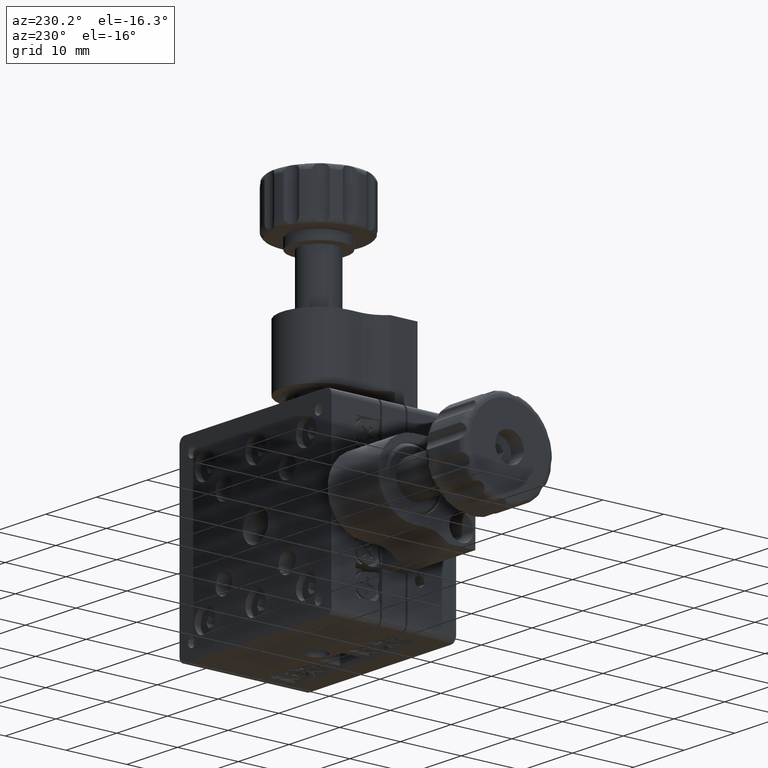
[diagram: clean part render]
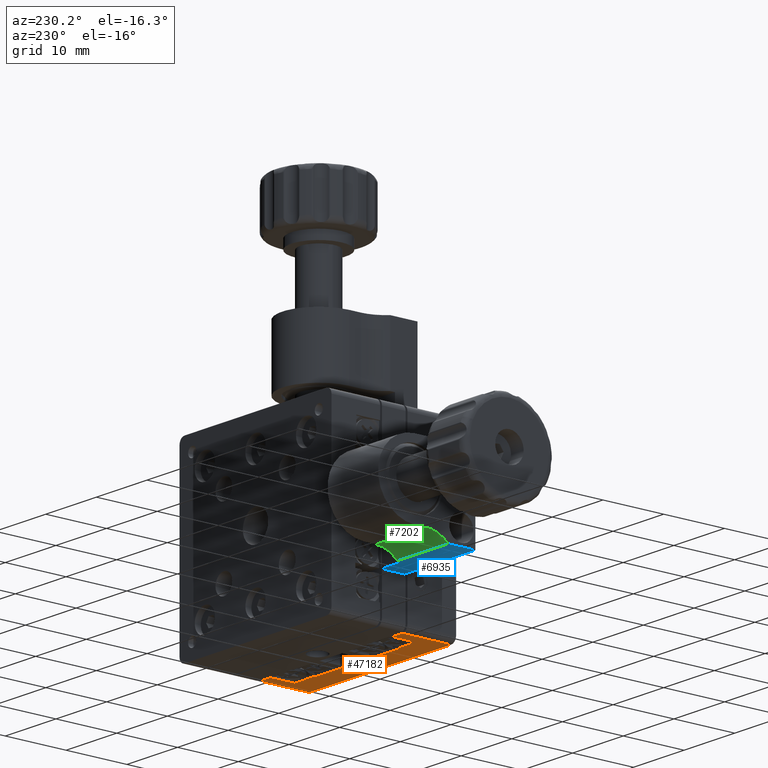
[diagram: same view with three faces highlighted in distinct colors, each labeled with its STEP entity id]
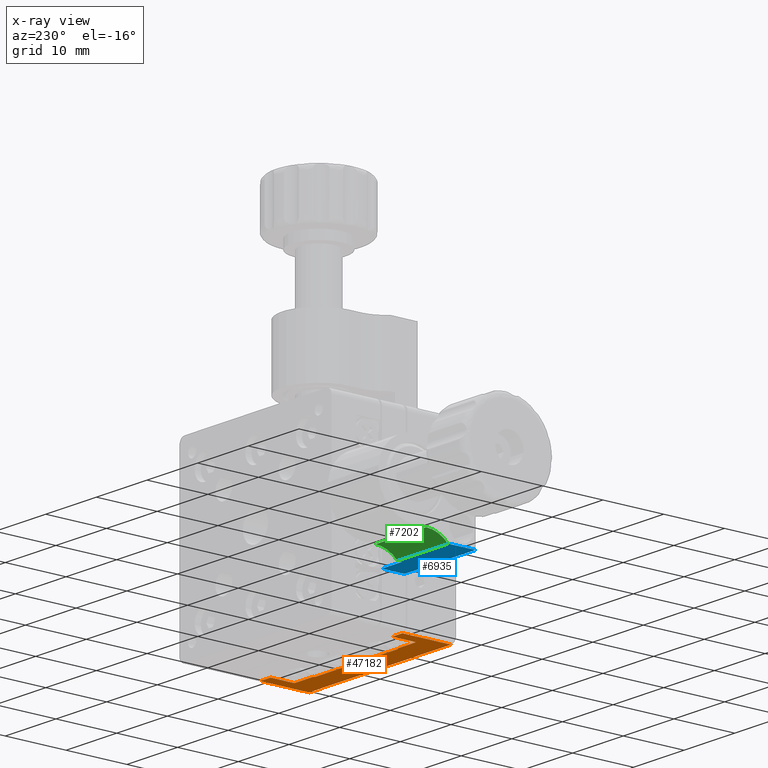
[diagram: x-ray of the same camera — body ghosted, the three highlighted faces saturated]
A machine part, auxiliary view with three faces highlighted in distinct colors.
The next image is the same camera in x-ray (body ghosted, the three faces saturated) — at least one of them is partly hidden behind the body in this view.
Their STEP definitions:

[orange] entity #47182 — the highlighted planar face has unit normal (-0, -0, 1).
#286 = VERTEX_POINT ( 'NONE', #46680 ) ;
#796 = EDGE_CURVE ( 'NONE', #7536, #27039, #18729, .T. ) ;
#1117 = CARTESIAN_POINT ( 'NONE',  ( -14.99999999999999300, 4.100000000000044900, -15.00000000000001400 ) ) ;
#1834 = LINE ( 'NONE', #44731, #26062 ) ;
#2376 = CARTESIAN_POINT ( 'NONE',  ( -11.99999999999998600, 4.100000000000030700, -15.00000000000001400 ) ) ;
#3353 = EDGE_CURVE ( 'NONE', #286, #5632, #28351, .T. ) ;
#4236 = CARTESIAN_POINT ( 'NONE',  ( 14.00000000000003400, 4.099999999999956100, -15.00000000000001400 ) ) ;
#5072 = VERTEX_POINT ( 'NONE', #44648 ) ;
#5483 = EDGE_CURVE ( 'NONE', #27039, #286, #20821, .T. ) ;
#5632 = VERTEX_POINT ( 'NONE', #25034 ) ;
#5971 = CARTESIAN_POINT ( 'NONE',  ( 14.00000000000002300, 7.999999999999954700, -15.00000000000001400 ) ) ;
#6030 = DIRECTION ( 'NONE',  ( 1.000000000000000000, -2.128939385892535300E-015, 7.133644514010314600E-030 ) ) ;
#6434 = VECTOR ( 'NONE', #33418, 1000.000000000000000 ) ;
#6611 = VERTEX_POINT ( 'NONE', #10881 ) ;
#7406 = LINE ( 'NONE', #45781, #8068 ) ;
#7536 = VERTEX_POINT ( 'NONE', #24211 ) ;
#7849 = ORIENTED_EDGE ( 'NONE', *, *, #29146, .T. ) ;
#8055 = LINE ( 'NONE', #38324, #20471 ) ;
#8068 = VECTOR ( 'NONE', #41772, 1000.000000000000000 ) ;
#8492 = VECTOR ( 'NONE', #24387, 1000.000000000000000 ) ;
#9209 = VERTEX_POINT ( 'NONE', #39303 ) ;
#9406 = VECTOR ( 'NONE', #6030, 1000.000000000000000 ) ;
#10232 = VECTOR ( 'NONE', #44068, 1000.000000000000000 ) ;
#10359 = DIRECTION ( 'NONE',  ( 1.000000000000000000, -3.108624468950438700E-015, 7.133644514010314600E-030 ) ) ;
#10815 = ORIENTED_EDGE ( 'NONE', *, *, #50683, .T. ) ;
#10881 = CARTESIAN_POINT ( 'NONE',  ( -8.249999999999989300, 4.100000000000018300, -15.00000000000001400 ) ) ;
#11582 = DIRECTION ( 'NONE',  ( 4.000361295780773500E-015, -1.000000000000000000, 2.667084525145951800E-029 ) ) ;
#12028 = CARTESIAN_POINT ( 'NONE',  ( 12.00000000000002500, 4.099999999999954300, -15.00000000000001400 ) ) ;
#12988 = ORIENTED_EDGE ( 'NONE', *, *, #25537, .T. ) ;
#13776 = EDGE_LOOP ( 'NONE', ( #15155, #19069, #23401, #7849, #24188, #12988, #16915, #17515, #43854, #23766, #26630, #10815 ) ) ;
#14094 = EDGE_CURVE ( 'NONE', #36016, #9209, #48630, .T. ) ;
#15155 = ORIENTED_EDGE ( 'NONE', *, *, #796, .T. ) ;
#16915 = ORIENTED_EDGE ( 'NONE', *, *, #17856, .T. ) ;
#17036 = LINE ( 'NONE', #39612, #36795 ) ;
#17141 = DIRECTION ( 'NONE',  ( -7.133644514010397300E-030, -2.667395143078001700E-029, 1.000000000000000000 ) ) ;
#17327 = EDGE_CURVE ( 'NONE', #5072, #48358, #7406, .T. ) ;
#17515 = ORIENTED_EDGE ( 'NONE', *, *, #24785, .T. ) ;
#17559 = VERTEX_POINT ( 'NONE', #35328 ) ;
#17579 = CARTESIAN_POINT ( 'NONE',  ( -14.99999999999999600, 8.000000000000046200, -15.00000000000001400 ) ) ;
#17856 = EDGE_CURVE ( 'NONE', #17559, #6611, #24796, .T. ) ;
#18124 = CARTESIAN_POINT ( 'NONE',  ( 12.00000000000002500, 4.099999999999954300, -15.00000000000001400 ) ) ;
#18729 = LINE ( 'NONE', #45387, #9406 ) ;
#19069 = ORIENTED_EDGE ( 'NONE', *, *, #5483, .T. ) ;
#19717 = CARTESIAN_POINT ( 'NONE',  ( -14.99999999999998800, 4.336808689942017700E-014, -15.00000000000001400 ) ) ;
#20030 = DIRECTION ( 'NONE',  ( 1.337249399532482700E-015, 1.000000000000000000, -2.667090451084242700E-029 ) ) ;
#20338 = VECTOR ( 'NONE', #20030, 1000.000000000000000 ) ;
#20471 = VECTOR ( 'NONE', #50161, 1000.000000000000000 ) ;
#20803 = VERTEX_POINT ( 'NONE', #34368 ) ;
#20821 = LINE ( 'NONE', #4236, #10232 ) ;
#20987 = VECTOR ( 'NONE', #21841, 1000.000000000000000 ) ;
#21841 = DIRECTION ( 'NONE',  ( -1.125835535908947600E-015, 1.000000000000000000, -2.667846532908724100E-029 ) ) ;
#22090 = CARTESIAN_POINT ( 'NONE',  ( -13.99999999999999600, 8.000000000000037300, -15.00000000000001400 ) ) ;
#22298 = VECTOR ( 'NONE', #10359, 1000.000000000000000 ) ;
#23401 = ORIENTED_EDGE ( 'NONE', *, *, #3353, .T. ) ;
#23766 = ORIENTED_EDGE ( 'NONE', *, *, #33806, .T. ) ;
#24188 = ORIENTED_EDGE ( 'NONE', *, *, #14094, .T. ) ;
#24211 = CARTESIAN_POINT ( 'NONE',  ( 12.00000000000003000, 7.999999999999954700, -15.00000000000001400 ) ) ;
#24387 = DIRECTION ( 'NONE',  ( -1.000000000000000000, 3.224272700682225600E-015, -7.136726001921334200E-030 ) ) ;
#24735 = PLANE ( 'NONE',  #25489 ) ;
#24785 = EDGE_CURVE ( 'NONE', #6611, #5072, #38425, .T. ) ;
#24796 = LINE ( 'NONE', #2376, #22298 ) ;
#25034 = CARTESIAN_POINT ( 'NONE',  ( -13.99999999999998800, 3.295974604355933500E-014, -15.00000000000001400 ) ) ;
#25489 = AXIS2_PLACEMENT_3D ( 'NONE', #1117, #17141, #25563 ) ;
#25537 = EDGE_CURVE ( 'NONE', #9209, #17559, #17036, .T. ) ;
#25562 = FACE_OUTER_BOUND ( 'NONE', #13776, .T. ) ;
#25563 = DIRECTION ( 'NONE',  ( -1.000000000000000000, 3.108624468950438700E-015, -7.133644514010314600E-030 ) ) ;
#26062 = VECTOR ( 'NONE', #32920, 1000.000000000000000 ) ;
#26630 = ORIENTED_EDGE ( 'NONE', *, *, #49321, .T. ) ;
#27039 = VERTEX_POINT ( 'NONE', #5971 ) ;
#28351 = LINE ( 'NONE', #19717, #8492 ) ;
#29146 = EDGE_CURVE ( 'NONE', #5632, #36016, #35802, .T. ) ;
#31555 = VECTOR ( 'NONE', #37298, 1000.000000000000000 ) ;
#32920 = DIRECTION ( 'NONE',  ( 1.000000000000000000, -3.339920932414012900E-015, 7.133644514010314600E-030 ) ) ;
#33407 = CARTESIAN_POINT ( 'NONE',  ( -13.99999999999999100, 4.100000000000044900, -15.00000000000001400 ) ) ;
#33418 = DIRECTION ( 'NONE',  ( 1.000000000000000000, -4.333230822772817900E-015, 7.133644514010314600E-030 ) ) ;
#33806 = EDGE_CURVE ( 'NONE', #48358, #20803, #8055, .T. ) ;
#34368 = CARTESIAN_POINT ( 'NONE',  ( 8.250000000000028400, 4.099999999999966800, -15.00000000000001400 ) ) ;
#35328 = CARTESIAN_POINT ( 'NONE',  ( -11.99999999999998600, 4.100000000000030700, -15.00000000000001400 ) ) ;
#35802 = LINE ( 'NONE', #33407, #20987 ) ;
#36016 = VERTEX_POINT ( 'NONE', #22090 ) ;
#36795 = VECTOR ( 'NONE', #11582, 1000.000000000000000 ) ;
#37298 = DIRECTION ( 'NONE',  ( 1.044997421928430800E-014, -1.000000000000000000, 2.667539587823838000E-029 ) ) ;
#38324 = CARTESIAN_POINT ( 'NONE',  ( 8.250000000000026600, 3.899999999999968400, -15.00000000000001400 ) ) ;
#38425 = LINE ( 'NONE', #49631, #31555 ) ;
#39303 = CARTESIAN_POINT ( 'NONE',  ( -12.00000000000000200, 8.000000000000032000, -15.00000000000001400 ) ) ;
#39612 = CARTESIAN_POINT ( 'NONE',  ( -11.99999999999998600, 4.100000000000030700, -15.00000000000001400 ) ) ;
#41772 = DIRECTION ( 'NONE',  ( 1.000000000000000000, -3.213759225070245000E-015, 7.133644514010314600E-030 ) ) ;
#43854 = ORIENTED_EDGE ( 'NONE', *, *, #17327, .T. ) ;
#44016 = CARTESIAN_POINT ( 'NONE',  ( 8.250000000000026600, 3.899999999999968400, -15.00000000000001400 ) ) ;
#44068 = DIRECTION ( 'NONE',  ( 1.993197273897351400E-015, -1.000000000000000000, 2.667244679801103100E-029 ) ) ;
#44648 = CARTESIAN_POINT ( 'NONE',  ( -8.249999999999987600, 3.900000000000019000, -15.00000000000001400 ) ) ;
#44731 = CARTESIAN_POINT ( 'NONE',  ( 8.250000000000028400, 4.099999999999966800, -15.00000000000001400 ) ) ;
#45133 = LINE ( 'NONE', #12028, #20338 ) ;
#45387 = CARTESIAN_POINT ( 'NONE',  ( 12.00000000000003000, 7.999999999999954700, -15.00000000000001400 ) ) ;
#45781 = CARTESIAN_POINT ( 'NONE',  ( -8.249999999999987600, 3.900000000000019000, -15.00000000000001400 ) ) ;
#46680 = CARTESIAN_POINT ( 'NONE',  ( 14.00000000000003900, -4.683753385137379200E-014, -15.00000000000001400 ) ) ;
#47182 = ADVANCED_FACE ( 'NONE', ( #25562 ), #24735, .F. ) ;
#47385 = VERTEX_POINT ( 'NONE', #18124 ) ;
#48358 = VERTEX_POINT ( 'NONE', #44016 ) ;
#48630 = LINE ( 'NONE', #17579, #6434 ) ;
#49321 = EDGE_CURVE ( 'NONE', #20803, #47385, #1834, .T. ) ;
#49631 = CARTESIAN_POINT ( 'NONE',  ( -8.249999999999987600, 3.900000000000019000, -15.00000000000001400 ) ) ;
#50161 = DIRECTION ( 'NONE',  ( 6.897260540483826000E-015, 1.000000000000000000, -2.667250698332179900E-029 ) ) ;
#50683 = EDGE_CURVE ( 'NONE', #47385, #7536, #45133, .T. ) ;

[blue] entity #6935 — the highlighted planar face has unit normal (-0, -0, 1).
#2456 = VECTOR ( 'NONE', #8900, 1000.000000000000000 ) ;
#2494 = CARTESIAN_POINT ( 'NONE',  ( -14.99999999999999600, 8.499999999999982200, -7.500000000000015100 ) ) ;
#3386 = VECTOR ( 'NONE', #9529, 1000.000000000000000 ) ;
#3659 = EDGE_LOOP ( 'NONE', ( #25510, #36323, #17753, #32845, #36780, #11006 ) ) ;
#4400 = CARTESIAN_POINT ( 'NONE',  ( -14.99999999999999600, 8.499999999999982200, -7.500000000000015100 ) ) ;
#5275 = LINE ( 'NONE', #7902, #46191 ) ;
#5901 = DIRECTION ( 'NONE',  ( 4.790133575231665300E-016, 1.000000000000000000, 1.110223024625161200E-016 ) ) ;
#6935 = ADVANCED_FACE ( 'NONE', ( #28055 ), #23663, .F. ) ;
#7902 = CARTESIAN_POINT ( 'NONE',  ( -14.99999999999999600, 8.499999999999982200, -7.500000000000015100 ) ) ;
#8314 = EDGE_CURVE ( 'NONE', #15598, #27588, #31600, .T. ) ;
#8847 = EDGE_CURVE ( 'NONE', #45760, #19184, #39577, .T. ) ;
#8900 = DIRECTION ( 'NONE',  ( 4.790133575231663300E-016, 1.000000000000000000, 1.110223024625162200E-016 ) ) ;
#9529 = DIRECTION ( 'NONE',  ( 1.000000000000000000, -4.790133575231719600E-016, 4.176314744178925100E-017 ) ) ;
#10668 = DIRECTION ( 'NONE',  ( -1.000000000000000000, 4.790133575231719600E-016, -4.176314744178925100E-017 ) ) ;
#11006 = ORIENTED_EDGE ( 'NONE', *, *, #31560, .F. ) ;
#14344 = CARTESIAN_POINT ( 'NONE',  ( -28.99999999999998600, 8.499999999999989300, -7.500000000000016900 ) ) ;
#14546 = LINE ( 'NONE', #41543, #3386 ) ;
#15050 = DIRECTION ( 'NONE',  ( 4.790133575231663300E-016, 1.000000000000000000, 1.110223024625162200E-016 ) ) ;
#15598 = VERTEX_POINT ( 'NONE', #14344 ) ;
#17753 = ORIENTED_EDGE ( 'NONE', *, *, #36669, .F. ) ;
#19184 = VERTEX_POINT ( 'NONE', #41659 ) ;
#21133 = CARTESIAN_POINT ( 'NONE',  ( -18.99999999999999600, 12.20000000000000300, -7.500000000000025800 ) ) ;
#23663 = PLANE ( 'NONE',  #23781 ) ;
#23781 = AXIS2_PLACEMENT_3D ( 'NONE', #35564, #32439, #43884 ) ;
#25315 = EDGE_CURVE ( 'NONE', #45760, #39269, #14546, .T. ) ;
#25510 = ORIENTED_EDGE ( 'NONE', *, *, #8847, .F. ) ;
#25735 = LINE ( 'NONE', #49542, #34977 ) ;
#27588 = VERTEX_POINT ( 'NONE', #33127 ) ;
#28055 = FACE_OUTER_BOUND ( 'NONE', #3659, .T. ) ;
#31560 = EDGE_CURVE ( 'NONE', #19184, #27588, #25735, .T. ) ;
#31600 = LINE ( 'NONE', #44424, #2456 ) ;
#32369 = LINE ( 'NONE', #4400, #43502 ) ;
#32439 = DIRECTION ( 'NONE',  ( -4.176314744178930700E-017, -1.110223024625150500E-016, 1.000000000000000000 ) ) ;
#32845 = ORIENTED_EDGE ( 'NONE', *, *, #38621, .T. ) ;
#33127 = CARTESIAN_POINT ( 'NONE',  ( -29.00000000000000000, 13.00000000000000500, -7.500000000000016900 ) ) ;
#34596 = VECTOR ( 'NONE', #5901, 1000.000000000000000 ) ;
#34977 = VECTOR ( 'NONE', #10668, 1000.000000000000000 ) ;
#35564 = CARTESIAN_POINT ( 'NONE',  ( -14.99999999999999600, 8.499999999999982200, -7.500000000000015100 ) ) ;
#36323 = ORIENTED_EDGE ( 'NONE', *, *, #25315, .T. ) ;
#36582 = CARTESIAN_POINT ( 'NONE',  ( -18.99999999999999600, 12.20000000000000300, -7.500000000000025800 ) ) ;
#36669 = EDGE_CURVE ( 'NONE', #38367, #39269, #5275, .T. ) ;
#36780 = ORIENTED_EDGE ( 'NONE', *, *, #8314, .T. ) ;
#38367 = VERTEX_POINT ( 'NONE', #2494 ) ;
#38621 = EDGE_CURVE ( 'NONE', #38367, #15598, #32369, .T. ) ;
#39269 = VERTEX_POINT ( 'NONE', #41363 ) ;
#39577 = LINE ( 'NONE', #36582, #34596 ) ;
#41363 = CARTESIAN_POINT ( 'NONE',  ( -14.99999999999999500, 12.19999999999999900, -7.500000000000015100 ) ) ;
#41543 = CARTESIAN_POINT ( 'NONE',  ( -18.99999999999999600, 12.20000000000000300, -7.500000000000025800 ) ) ;
#41659 = CARTESIAN_POINT ( 'NONE',  ( -18.99999999999999600, 13.00000000000000000, -7.500000000000025800 ) ) ;
#43502 = VECTOR ( 'NONE', #43903, 1000.000000000000000 ) ;
#43884 = DIRECTION ( 'NONE',  ( 1.000000000000000000, -4.790133575231719600E-016, 4.176314744178925100E-017 ) ) ;
#43903 = DIRECTION ( 'NONE',  ( -1.000000000000000000, 4.790133575231719600E-016, -4.176314744178925100E-017 ) ) ;
#44424 = CARTESIAN_POINT ( 'NONE',  ( -28.99999999999998600, 8.499999999999989300, -7.500000000000016900 ) ) ;
#45760 = VERTEX_POINT ( 'NONE', #21133 ) ;
#46191 = VECTOR ( 'NONE', #15050, 1000.000000000000000 ) ;
#49542 = CARTESIAN_POINT ( 'NONE',  ( -14.99999999999999300, 12.99999999999999800, -7.500000000000015100 ) ) ;

[green] entity #7202 — the highlighted cylindrical surface (partial cylindrical patch) has radius 5 mm, axis along (-1, 0, -0).
#14 = DIRECTION ( 'NONE',  ( 0.0000000000000000000, 0.0000000000000000000, -1.000000000000000000 ) ) ;
#519 = ORIENTED_EDGE ( 'NONE', *, *, #31560, .T. ) ;
#2211 = DIRECTION ( 'NONE',  ( 0.0000000000000000000, 0.0000000000000000000, 1.000000000000000000 ) ) ;
#4246 = DIRECTION ( 'NONE',  ( -1.000000000000000000, 4.790133575231719600E-016, -4.176314744178925100E-017 ) ) ;
#4515 = ORIENTED_EDGE ( 'NONE', *, *, #6601, .F. ) ;
#5214 = CIRCLE ( 'NONE', #41943, 5.000000000000013300 ) ;
#5936 = EDGE_CURVE ( 'NONE', #26463, #27588, #5214, .T. ) ;
#6601 = EDGE_CURVE ( 'NONE', #19184, #49118, #13832, .T. ) ;
#6848 = LINE ( 'NONE', #27822, #46530 ) ;
#7202 = ADVANCED_FACE ( 'NONE', ( #40400 ), #37319, .F. ) ;
#7734 = ORIENTED_EDGE ( 'NONE', *, *, #33673, .F. ) ;
#10668 = DIRECTION ( 'NONE',  ( -1.000000000000000000, 4.790133575231719600E-016, -4.176314744178925100E-017 ) ) ;
#11765 = AXIS2_PLACEMENT_3D ( 'NONE', #30258, #25985, #2211 ) ;
#12152 = AXIS2_PLACEMENT_3D ( 'NONE', #15856, #43503, #19817 ) ;
#13832 = CIRCLE ( 'NONE', #11765, 5.000000000000012400 ) ;
#13908 = ORIENTED_EDGE ( 'NONE', *, *, #5936, .F. ) ;
#15856 = CARTESIAN_POINT ( 'NONE',  ( -14.99999999999999100, 16.57071421427143000, -11.00000000000001600 ) ) ;
#19184 = VERTEX_POINT ( 'NONE', #41659 ) ;
#19817 = DIRECTION ( 'NONE',  ( 0.0000000000000000000, 0.0000000000000000000, 1.000000000000000000 ) ) ;
#25735 = LINE ( 'NONE', #49542, #34977 ) ;
#25985 = DIRECTION ( 'NONE',  ( -1.000000000000000000, 4.790133575231719600E-016, -4.176314744178925100E-017 ) ) ;
#26463 = VERTEX_POINT ( 'NONE', #45773 ) ;
#27588 = VERTEX_POINT ( 'NONE', #33127 ) ;
#27822 = CARTESIAN_POINT ( 'NONE',  ( -14.99999999999999100, 16.57071421427143000, -6.000000000000007100 ) ) ;
#30258 = CARTESIAN_POINT ( 'NONE',  ( -18.99999999999997900, 16.57071421427143300, -11.00000000000001600 ) ) ;
#31560 = EDGE_CURVE ( 'NONE', #19184, #27588, #25735, .T. ) ;
#33127 = CARTESIAN_POINT ( 'NONE',  ( -29.00000000000000000, 13.00000000000000500, -7.500000000000016900 ) ) ;
#33673 = EDGE_CURVE ( 'NONE', #49118, #26463, #6848, .T. ) ;
#34977 = VECTOR ( 'NONE', #10668, 1000.000000000000000 ) ;
#37319 = CYLINDRICAL_SURFACE ( 'NONE', #12152, 5.000000000000012400 ) ;
#40400 = FACE_OUTER_BOUND ( 'NONE', #50423, .T. ) ;
#41659 = CARTESIAN_POINT ( 'NONE',  ( -18.99999999999999600, 13.00000000000000000, -7.500000000000025800 ) ) ;
#41943 = AXIS2_PLACEMENT_3D ( 'NONE', #43481, #47504, #14 ) ;
#43481 = CARTESIAN_POINT ( 'NONE',  ( -28.99999999999998200, 16.57071421427143700, -11.00000000000000900 ) ) ;
#43503 = DIRECTION ( 'NONE',  ( -1.000000000000000000, 4.790133575231719600E-016, -4.176314744178925100E-017 ) ) ;
#45773 = CARTESIAN_POINT ( 'NONE',  ( -28.99999999999998200, 16.57071421427143700, -6.000000000000007100 ) ) ;
#46309 = CARTESIAN_POINT ( 'NONE',  ( -18.99999999999999600, 16.57071421427143300, -6.000000000000007100 ) ) ;
#46530 = VECTOR ( 'NONE', #4246, 1000.000000000000000 ) ;
#47504 = DIRECTION ( 'NONE',  ( 1.000000000000000000, -4.790133575231719600E-016, 4.176314744178925100E-017 ) ) ;
#49118 = VERTEX_POINT ( 'NONE', #46309 ) ;
#49542 = CARTESIAN_POINT ( 'NONE',  ( -14.99999999999999300, 12.99999999999999800, -7.500000000000015100 ) ) ;
#50423 = EDGE_LOOP ( 'NONE', ( #4515, #519, #13908, #7734 ) ) ;